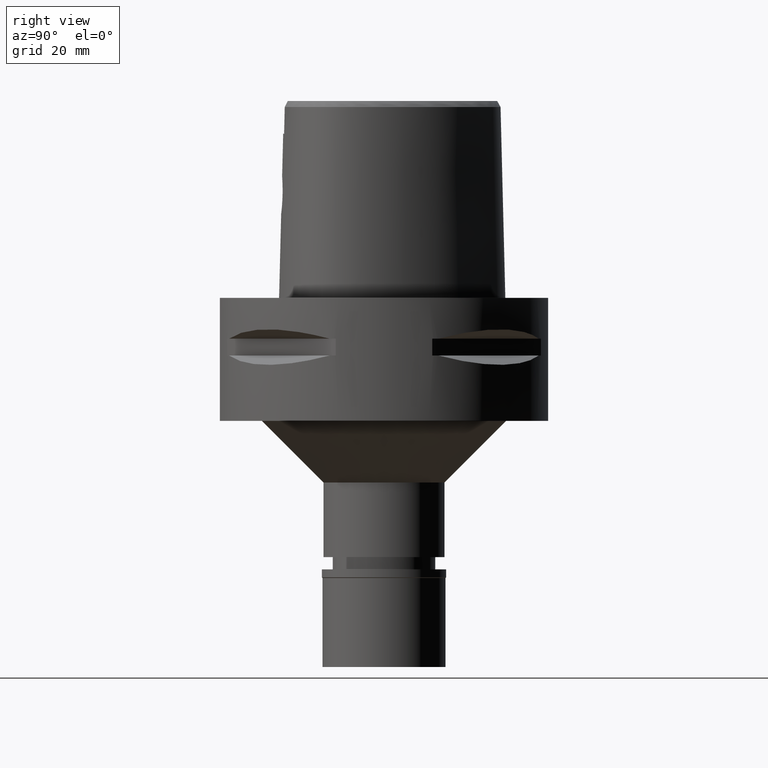
[diagram: clean part render]
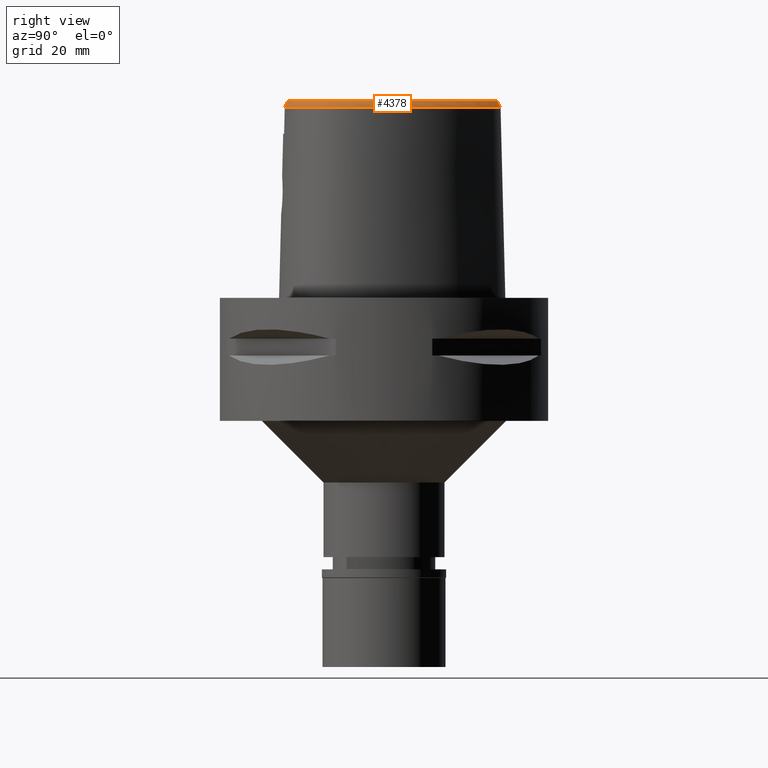
[diagram: same view with one face highlighted and labeled with its STEP entity id]
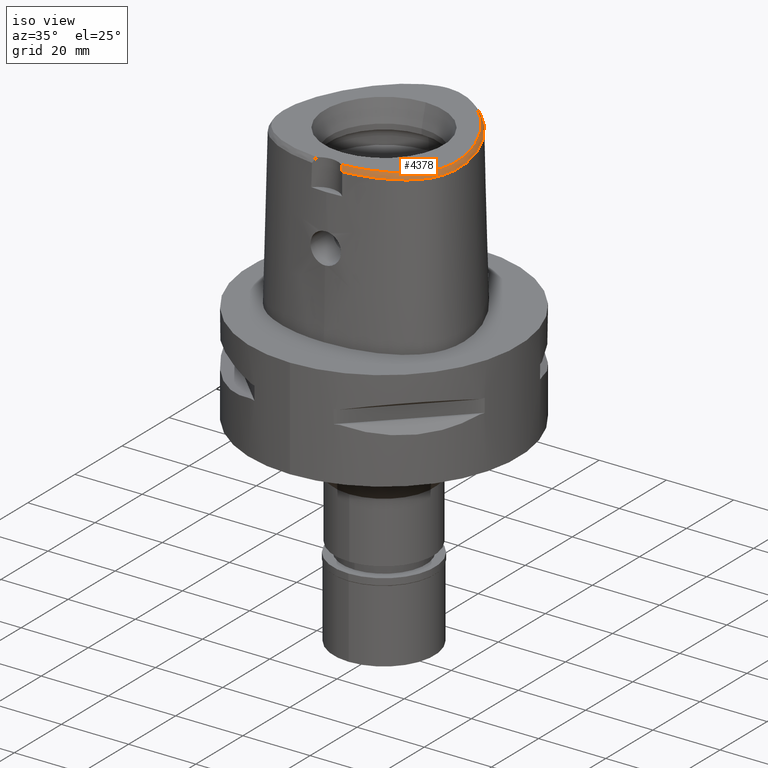
[diagram: same view with one face highlighted and labeled with its STEP entity id]
A machine part, right view. The second image highlights one B-rep face of the part: STEP entity #4378.
A second angle (iso view) of the same face is appended — the face is thin or edge-on in the first view.
In plain terms, the highlighted face is a freeform B-spline surface patch.
Its self-contained STEP definition (entity closure, byte-faithful):
#12 = CARTESIAN_POINT ( 'NONE',  ( 23.53784508590050351, -15.81022840325235101, 46.52069747213675299 ) ) ;
#29 = CARTESIAN_POINT ( 'NONE',  ( 25.64088338102000009, -7.344900613613999596, 48.18007419593999430 ) ) ;
#51 = CARTESIAN_POINT ( 'NONE',  ( 6.596705544693000078, 26.95391701082000324, 46.34061479720999444 ) ) ;
#60 = CARTESIAN_POINT ( 'NONE',  ( 3.157901390953000043, -23.72018130869000174, 47.56692138008000370 ) ) ;
#76 = CARTESIAN_POINT ( 'NONE',  ( 10.38460126487999879, 24.30003398994999841, 46.95376754828999566 ) ) ;
#85 = CARTESIAN_POINT ( 'NONE',  ( 17.34628619756000134, -20.42387336536000220, 46.95376767441999988 ) ) ;
#105 = CARTESIAN_POINT ( 'NONE',  ( 12.08138904680000003, 22.05616544323000028, 48.18007403053000814 ) ) ;
#114 = CARTESIAN_POINT ( 'NONE',  ( 5.742398983970999460, -24.17508867665999972, 46.34061577538999899 ) ) ;
#131 = CARTESIAN_POINT ( 'NONE',  ( 13.41110572882000085, 21.29893192947000102, 47.56692205235999893 ) ) ;
#136 = CARTESIAN_POINT ( 'NONE',  ( 14.78179831765999985, -20.85166113440000046, 48.18007428789999835 ) ) ;
#152 = CARTESIAN_POINT ( 'NONE',  ( 18.67675438144999944, 14.42738754188999906, 48.18007419999000263 ) ) ;
#161 = CARTESIAN_POINT ( 'NONE',  ( 3.134671635188999606, -23.37745442491999981, 48.18007412076999429 ) ) ;
#185 = CARTESIAN_POINT ( 'NONE',  ( 24.85656740750000182, -13.22604691823000067, 46.95376735023999970 ) ) ;
#194 = CARTESIAN_POINT ( 'NONE',  ( 13.24267791555689833, 21.12418368643334432, 47.99999999999820943 ) ) ;
#202 = CARTESIAN_POINT ( 'NONE',  ( 2.123626022070999930, 27.30653505098000267, 48.18007434286000290 ) ) ;
#210 = CARTESIAN_POINT ( 'NONE',  ( 24.54676992479000219, -13.07722594252999926, 47.56692084644999596 ) ) ;
#234 = CARTESIAN_POINT ( 'NONE',  ( 25.57334169138999869, -10.12482847395000007, 47.56692094291000217 ) ) ;
#253 = B_SPLINE_CURVE_WITH_KNOTS ( 'NONE', 3,
 ( #4706, #4799, #1245, #564, #2780, #544 ),
 .UNSPECIFIED., .F., .F.,
 ( 4, 1, 1, 4 ),
 ( 0.0000000000000000000, 0.3333333333333000081, 0.6666666666667000474, 1.000000000000000000 ),
 .UNSPECIFIED. ) ;
#257 = CARTESIAN_POINT ( 'NONE',  ( 2.239108897162999767, 27.98413104560999898, 46.95376734904999694 ) ) ;
#267 = CARTESIAN_POINT ( 'NONE',  ( 25.90813006229999971, -10.20246052006000070, 46.95376758327000033 ) ) ;
#297 = CARTESIAN_POINT ( 'NONE',  ( 23.27996631277000006, -15.72868801807999617, 46.95376799799999645 ) ) ;
#321 = CARTESIAN_POINT ( 'NONE',  ( 25.84605458648999843, -2.764527204806000338, 47.56692102096999264 ) ) ;
#345 = CARTESIAN_POINT ( 'NONE',  ( 25.35471145517999858, 1.556680153904999919, 46.95376768519000166 ) ) ;
#355 = CARTESIAN_POINT ( 'NONE',  ( 9.079666835764617971, -22.67647771863508410, 48.00000000001010392 ) ) ;
#372 = CARTESIAN_POINT ( 'NONE',  ( 25.50499885794000221, -2.806527274290000040, 48.18007427009000310 ) ) ;
#381 = CARTESIAN_POINT ( 'NONE',  ( 21.78596494081082824, -16.52262878100322396, 48.00000000000046896 ) ) ;
#392 = CARTESIAN_POINT ( 'NONE',  ( 25.97048418058000152, -4.025838470751000209, 47.56692107670999548 ) ) ;
#416 = CARTESIAN_POINT ( 'NONE',  ( 24.69023187387999840, 1.381293610638000047, 48.18007428499999634 ) ) ;
#433 = CARTESIAN_POINT ( 'NONE',  ( 26.66096789088959440, -6.450661550928245447, 46.52070141660812652 ) ) ;
#444 = CARTESIAN_POINT ( 'NONE',  ( 8.002032558455999478, 25.04896687407999778, 48.18007427799999931 ) ) ;
#454 = CARTESIAN_POINT ( 'NONE',  ( 12.32730625465999985, -22.44811009646999977, 46.95376790485000384 ) ) ;
#470 = CARTESIAN_POINT ( 'NONE',  ( 13.17264561890000074, 21.05152335463000313, 48.18007384122999781 ) ) ;
#478 = CARTESIAN_POINT ( 'NONE',  ( 17.18758658984999954, -20.11907231448000033, 47.56692098063999907 ) ) ;
#495 = CARTESIAN_POINT ( 'NONE',  ( 8.352303560578999253, 25.64030220655000036, 46.95376772590000058 ) ) ;
#507 = CARTESIAN_POINT ( 'NONE',  ( 9.129726850902001090, -22.91395773199000274, 47.56692097952999632 ) ) ;
#526 = CARTESIAN_POINT ( 'NONE',  ( 15.65603767912999977, 18.93799180007999894, 47.56692120915000288 ) ) ;
#538 = CARTESIAN_POINT ( 'NONE',  ( 15.04030460676000125, -21.48845147769999997, 46.95376766840000471 ) ) ;
#544 = CARTESIAN_POINT ( 'NONE',  ( 3.652533226355999751, -23.43985283522000174, 48.00000000000000000 ) ) ;
#552 = CARTESIAN_POINT ( 'NONE',  ( 6.451896040211999583, 26.64226029656999728, 46.95376794490999828 ) ) ;
#557 = VERTEX_POINT ( 'NONE', #2498 ) ;
#559 = CARTESIAN_POINT ( 'NONE',  ( 3.181131146716000391, -24.06290819244999923, 46.95376863939999623 ) ) ;
#564 = CARTESIAN_POINT ( 'NONE',  ( 3.935829031287000124, -23.66630135629999998, 47.55622098501999773 ) ) ;
#573 = CARTESIAN_POINT ( 'NONE',  ( 3.027503298020000067, 27.82780905803999971, 46.95376788467000040 ) ) ;
#582 = CARTESIAN_POINT ( 'NONE',  ( 24.15176169299000009, -14.50232267788000051, 46.95376750970999780 ) ) ;
#586 = CARTESIAN_POINT ( 'NONE',  ( 25.98365436782999893, -7.369523509214999990, 47.56692119930999496 ) ) ;
#588 = CARTESIAN_POINT ( 'NONE',  ( 11.07918744940963052, 23.03051546725279408, 48.00000000000522249 ) ) ;
#602 = CARTESIAN_POINT ( 'NONE',  ( 0.6879986110182000347, 27.46942530780999903, 48.18007431731000167 ) ) ;
#608 = CARTESIAN_POINT ( 'NONE',  ( 20.11858714328000275, -18.71397474173999953, 46.95376792319000003 ) ) ;
#629 = CARTESIAN_POINT ( 'NONE',  ( 0.7271237151273000077, 28.15569446550999899, 46.95376749745999945 ) ) ;
#641 = CARTESIAN_POINT ( 'NONE',  ( 26.02292646106000262, -11.12284912107000068, 46.34061431691999644 ) ) ;
#652 = CARTESIAN_POINT ( 'NONE',  ( 4.491298471527668035, 26.80158405532242583, 48.00000000000270717 ) ) ;
#658 = CARTESIAN_POINT ( 'NONE',  ( 0.7075611630727000056, 27.81255988666000079, 47.56692090738999212 ) ) ;
#666 = ORIENTED_EDGE ( 'NONE', *, *, #3261, .F. ) ;
#668 = CARTESIAN_POINT ( 'NONE',  ( 18.00929997150000261, -19.27209676624000068, 48.18007425707000380 ) ) ;
#697 = CARTESIAN_POINT ( 'NONE',  ( 23.74019838124999993, -15.11764739240000033, 46.95376757546999613 ) ) ;
#728 = CARTESIAN_POINT ( 'NONE',  ( 21.55191286514000026, 9.524453320122999500, 48.18007407103000617 ) ) ;
#738 = CARTESIAN_POINT ( 'NONE',  ( 26.56868348264639934, -7.988862950300020138, 46.52070085311223124 ) ) ;
#748 = CARTESIAN_POINT ( 'NONE',  ( 21.26008157413999911, 11.53277284253000090, 46.95376773003999915 ) ) ;
#757 = CARTESIAN_POINT ( 'NONE',  ( 21.18145661121184986, -17.09850743469401024, 47.99999999999823785 ) ) ;
#759 = CARTESIAN_POINT ( 'NONE',  ( 4.472216720976999405, -24.20009030094000124, 46.52069014668999358 ) ) ;
#774 = CARTESIAN_POINT ( 'NONE',  ( 23.08841594981999634, 6.157119697985999451, 48.18007416375999696 ) ) ;
#783 = CARTESIAN_POINT ( 'NONE',  ( 25.33687583871989091, -10.06999584063626330, 48.00000000000572697 ) ) ;
#803 = CARTESIAN_POINT ( 'NONE',  ( 26.37425288109000121, -5.202043877592999799, 46.95376760522999859 ) ) ;
#815 = CARTESIAN_POINT ( 'NONE',  ( 17.84219066873741255, -20.48406917475045219, 46.52069465465729792 ) ) ;
#823 = CARTESIAN_POINT ( 'NONE',  ( 26.37675703646999992, -6.332047535492000279, 46.95376804445000118 ) ) ;
#833 = CARTESIAN_POINT ( 'NONE',  ( 23.65541542675069664, -14.18997106324592750, 48.00000000000492406 ) ) ;
#838 = CARTESIAN_POINT ( 'NONE',  ( 16.39076485917053105, -21.20751266143367175, 46.52069409116138843 ) ) ;
#850 = CARTESIAN_POINT ( 'NONE',  ( 15.02831862416000064, 20.64675731216999921, 46.34061795577999732 ) ) ;
#875 = CARTESIAN_POINT ( 'NONE',  ( 9.351964765541000091, 25.01593934232000294, 46.95376769285999785 ) ) ;
#882 = CARTESIAN_POINT ( 'NONE',  ( 13.85087370417999963, -22.30824870747000332, 46.34061469686000123 ) ) ;
#901 = CARTESIAN_POINT ( 'NONE',  ( 16.77726884471000091, 17.59682606767000124, 47.56692084016000166 ) ) ;
#923 = CARTESIAN_POINT ( 'NONE',  ( 8.527439061639999096, 25.93596987279000032, 46.34061444985000122 ) ) ;
#931 = CARTESIAN_POINT ( 'NONE',  ( 10.89987162477000027, -23.20539823390000223, 46.34061435940999729 ) ) ;
#949 = CARTESIAN_POINT ( 'NONE',  ( 7.225350853127999962, 25.87625741304999849, 47.56692116210999899 ) ) ;
#959 = FACE_OUTER_BOUND ( 'NONE', #4170, .T. ) ;
#982 = CARTESIAN_POINT ( 'NONE',  ( 18.52942730452000220, -20.16221242756000009, 46.34061464271000830 ) ) ;
#987 = CARTESIAN_POINT ( 'NONE',  ( 8.053467330374783018, 25.13580020532472048, 48.00000000000488853 ) ) ;
#1005 = CARTESIAN_POINT ( 'NONE',  ( 21.80428447032999628, -17.78925365744999709, 46.34061419684000072 ) ) ;
#1015 = CARTESIAN_POINT ( 'NONE',  ( 16.58774972841738560, 17.44522137221390068, 48.00000000001061551 ) ) ;
#1033 = CARTESIAN_POINT ( 'NONE',  ( 25.03254111755999745, -10.83621333564999922, 48.18007429242000228 ) ) ;
#1062 = CARTESIAN_POINT ( 'NONE',  ( 25.48283736332999894, -12.66665979722999857, 46.34061485607000463 ) ) ;
#1077 = CARTESIAN_POINT ( 'NONE',  ( -0.01660226057379999773, 28.17685866367000003, 46.95376786832999727 ) ) ;
#1087 = CARTESIAN_POINT ( 'NONE',  ( 22.44490365254999986, -17.17903710741000012, 46.34061428771999402 ) ) ;
#1096 = CARTESIAN_POINT ( 'NONE',  ( 1.407937999592890677, 27.50970958195879845, 48.00000000000430589 ) ) ;
#1111 = CARTESIAN_POINT ( 'NONE',  ( 25.62782584270999919, -4.051757161291000386, 48.18007424692000029 ) ) ;
#1129 = CARTESIAN_POINT ( 'NONE',  ( 24.48700992949688526, 6.834036305491009600, 46.52070592457527454 ) ) ;
#1139 = CARTESIAN_POINT ( 'NONE',  ( 22.47125624539000199, 9.990693675080001057, 46.34061635704999560 ) ) ;
#1148 = CARTESIAN_POINT ( 'NONE',  ( 25.60516200877652793, -2.794192459353026514, 48.00000000000385114 ) ) ;
#1163 = CARTESIAN_POINT ( 'NONE',  ( 26.18711031504999909, -2.722527135321999747, 46.95376777185000350 ) ) ;
#1171 = CARTESIAN_POINT ( 'NONE',  ( 13.54089058450464833, -21.43147460488913936, 48.00000000000957812 ) ) ;
#1185 = CARTESIAN_POINT ( 'NONE',  ( 26.32848296919999953, -1.312674695501000022, 46.34061448439000230 ) ) ;
#1194 = CARTESIAN_POINT ( 'NONE',  ( 3.695072017992946822, -23.43648746218532608, 48.00000000000336087 ) ) ;
#1200 = LINE ( 'NONE', #3849, #1420 ) ;
#1209 = CARTESIAN_POINT ( 'NONE',  ( 25.74941301808999938, -9.265019863170000036, 47.56692092796999560 ) ) ;
#1219 = CARTESIAN_POINT ( 'NONE',  ( 14.81975810290876083, -20.94516920634793777, 48.00000000000768807 ) ) ;
#1221 = CARTESIAN_POINT ( 'NONE',  ( 26.30769162470763689, -1.593520748820276944, 46.52070310709584788 ) ) ;
#1231 = CARTESIAN_POINT ( 'NONE',  ( 19.69867297030999964, 12.83715782332999922, 48.18007428420000338 ) ) ;
#1245 = CARTESIAN_POINT ( 'NONE',  ( 4.209589151393000606, -23.91901046517000040, 47.06412677493000274 ) ) ;
#1257 = CARTESIAN_POINT ( 'NONE',  ( 14.28119124676999974, 19.93651518437000192, 48.18007389753999803 ) ) ;
#1284 = CARTESIAN_POINT ( 'NONE',  ( 5.551409126173999731, 27.03212672291999752, 46.95376763261999997 ) ) ;
#1292 = CARTESIAN_POINT ( 'NONE',  ( 10.72919907502000036, -22.53969495435999804, 47.56692097834999799 ) ) ;
#1307 = CARTESIAN_POINT ( 'NONE',  ( 9.162728381494000374, 24.72909887479000091, 47.56692098827999615 ) ) ;
#1327 = CARTESIAN_POINT ( 'NONE',  ( 8.177168059516999321, 25.34463454031000040, 47.56692100194999995 ) ) ;
#1377 = B_SPLINE_CURVE_WITH_KNOTS ( 'NONE', 3,
 ( #2387, #2758, #4686, #2290, #3169, #4223, #2360, #2736, #1129, #1221, #4204, #433, #738, #3516, #1995, #4295, #3819, #12, #3492, #3147, #5038, #815, #838, #3901, #3876, #759 ),
 .UNSPECIFIED., .F., .F.,
 ( 4, 2, 2, 2, 2, 2, 2, 2, 2, 2, 2, 2, 4 ),
 ( 0.0000000000000000000, 0.06249999999999991673, 0.1249999999999998612, 0.2499999999999997780, 0.4999999999999995559, 0.5624999999999994449, 0.6249999999999993339, 0.6874999999999993339, 0.7187499999999993339, 0.7499999999999994449, 0.8124999999999995559, 0.8749999999999996669, 1.000000000000000000 ),
 .UNSPECIFIED. ) ;
#1382 = CARTESIAN_POINT ( 'NONE',  ( 3.841154614901000297, 27.61983465477999999, 46.95376809334999990 ) ) ;
#1389 = CARTESIAN_POINT ( 'NONE',  ( 23.02468728140000209, -16.56380867720999817, 46.34061445735000007 ) ) ;
#1416 = CARTESIAN_POINT ( 'NONE',  ( 25.44451698377000071, -11.80349811939999860, 46.95376782457999809 ) ) ;
#1420 = VECTOR ( 'NONE', #1902, 1000.000000000000114 ) ;
#1426 = CARTESIAN_POINT ( 'NONE',  ( 23.81116373424025312, 4.548397580874730117, 48.00000000000433431 ) ) ;
#1434 = CARTESIAN_POINT ( 'NONE',  ( 1.396541970786000064, 27.40941912008999637, 48.18007437098000167 ) ) ;
#1443 = CARTESIAN_POINT ( 'NONE',  ( 23.46009488263000264, -14.91849121227000019, 47.56692093967999568 ) ) ;
#1462 = CARTESIAN_POINT ( 'NONE',  ( -0.7594728682108999873, 27.46010919787000049, 48.18007437569000473 ) ) ;
#1470 = CARTESIAN_POINT ( 'NONE',  ( 21.09811681096000058, -18.39377067631999907, 46.34061419121999137 ) ) ;
#1478 = CARTESIAN_POINT ( 'NONE',  ( 5.331982176209418611, 26.48833275828846823, 48.00000000000174794 ) ) ;
#1493 = CARTESIAN_POINT ( 'NONE',  ( 18.90260609598999864, -18.71898979700000254, 48.18007419028999294 ) ) ;
#1520 = CARTESIAN_POINT ( 'NONE',  ( 23.40667920559999970, 6.286639116661999260, 47.56692127669000314 ) ) ;
#1531 = CARTESIAN_POINT ( 'NONE',  ( 5.628119991153127444, -23.25222728397346117, 48.00000000000208900 ) ) ;
#1543 = CARTESIAN_POINT ( 'NONE',  ( 26.42626315995000041, -9.384599034423999342, 46.34061416639999464 ) ) ;
#1552 = CARTESIAN_POINT ( 'NONE',  ( 15.99678577414262115, -20.43406366493088555, 48.00000000000676437 ) ) ;
#1564 = CARTESIAN_POINT ( 'NONE',  ( 26.52816604360999975, -2.680527065837999601, 46.34061452273000015 ) ) ;
#1585 = CARTESIAN_POINT ( 'NONE',  ( 25.31222752652999830, -1.485708825829000101, 48.18007427425000344 ) ) ;
#1595 = CARTESIAN_POINT ( 'NONE',  ( 25.74155027848015820, -7.352132003089803192, 48.00000000000678568 ) ) ;
#1610 = CARTESIAN_POINT ( 'NONE',  ( 25.98973115497999942, -1.370352738944000004, 46.95376774768000416 ) ) ;
#1632 = CARTESIAN_POINT ( 'NONE',  ( 5.294215085129000187, 26.39473661526999848, 48.18007429404999442 ) ) ;
#1641 = CARTESIAN_POINT ( 'NONE',  ( 14.91105146220999877, -21.17005630605000022, 47.56692097814999443 ) ) ;
#1655 = CARTESIAN_POINT ( 'NONE',  ( 12.30859843710999968, 22.31395051496999926, 47.56692159709999856 ) ) ;
#1663 = CARTESIAN_POINT ( 'NONE',  ( 10.81453534989999987, -22.87254659413000013, 46.95376766887999764 ) ) ;
#1678 = CARTESIAN_POINT ( 'NONE',  ( 19.24719422429999938, 14.81060417553000086, 46.95376817916999812 ) ) ;
#1683 = CARTESIAN_POINT ( 'NONE',  ( 3.652533226355999751, -23.43985283522000174, 48.00000000000000000 ) ) ;
#1686 = CARTESIAN_POINT ( 'NONE',  ( 12.42721170006000087, -22.77688688679999984, 46.34061473367999895 ) ) ;
#1700 = CARTESIAN_POINT ( 'NONE',  ( 15.39705639671000093, 18.71216436794999538, 48.18007419184999662 ) ) ;
#1706 = CARTESIAN_POINT ( 'NONE',  ( 4.446663426647999628, -24.30860725487999829, 46.34061613168999827 ) ) ;
#1731 = CARTESIAN_POINT ( 'NONE',  ( 7.436088919471999681, -23.23422973569000050, 47.56692096175999751 ) ) ;
#1747 = VERTEX_POINT ( 'NONE', #1683 ) ;
#1748 = CARTESIAN_POINT ( 'NONE',  ( 2.296850334708000041, 28.32292904292999935, 46.34061385214999973 ) ) ;
#1757 = CARTESIAN_POINT ( 'NONE',  ( 25.16636489020000056, -13.37486789393000031, 46.34061385403000344 ) ) ;
#1765 = CARTESIAN_POINT ( 'NONE',  ( 14.35433142683535301, 20.00604447574735545, 48.00000000000309086 ) ) ;
#1783 = CARTESIAN_POINT ( 'NONE',  ( 18.18267574917000218, -19.56880198668000048, 47.56692105227999434 ) ) ;
#1792 = CARTESIAN_POINT ( 'NONE',  ( 20.74842146925110598, 11.24651447314026242, 48.00000000000827072 ) ) ;
#1811 = CARTESIAN_POINT ( 'NONE',  ( 19.71405436993000038, -18.15831526665999718, 48.18007424404000005 ) ) ;
#1828 = CARTESIAN_POINT ( 'NONE',  ( -0.01712891577436999671, 28.52056752600999801, 46.34061467576000837 ) ) ;
#1838 = CARTESIAN_POINT ( 'NONE',  ( 26.24291843321000073, -10.28009256618000045, 46.34061422362999849 ) ) ;
#1848 = CARTESIAN_POINT ( 'NONE',  ( 3.680297990136021102, 27.05591354499795287, 48.00000000000008527 ) ) ;
#1862 = CARTESIAN_POINT ( 'NONE',  ( 24.02030187987000076, -15.31680357253999958, 46.34061421124999924 ) ) ;
#1870 = CARTESIAN_POINT ( 'NONE',  ( 22.82172265264157218, -15.36274108902376589, 48.00000000000866862 ) ) ;
#1885 = CARTESIAN_POINT ( 'NONE',  ( 25.71427548084000136, 0.05723562514976000132, 46.95376801624000507 ) ) ;
#1895 = CARTESIAN_POINT ( 'NONE',  ( 25.72845965680040692, -4.044145215521686154, 48.00000000000830624 ) ) ;
#1902 = DIRECTION ( 'NONE',  ( -8.026808488646270522E-12, -0.4887572309465159082, 0.8724198353989288668 ) ) ;
#1908 = CARTESIAN_POINT ( 'NONE',  ( 26.56963733430000119, -8.432427705165000731, 46.34061448834999908 ) ) ;
#1922 = CARTESIAN_POINT ( 'NONE',  ( 24.62320007857000093, -12.31148373401171447, 48.00000000000709832 ) ) ;
#1938 = CARTESIAN_POINT ( 'NONE',  ( 24.04320571715999932, 6.545677954015000743, 46.34061550254000394 ) ) ;
#1947 = CARTESIAN_POINT ( 'NONE',  ( 19.77345709183517286, -18.23990985539869314, 48.00000000000108713 ) ) ;
#1960 = CARTESIAN_POINT ( 'NONE',  ( 23.72494246137999951, 6.416158535338000846, 46.95376838960999777 ) ) ;
#1980 = CARTESIAN_POINT ( 'NONE',  ( 22.36479587462000040, 7.835693360635999305, 48.18007401973000725 ) ) ;
#1995 = CARTESIAN_POINT ( 'NONE',  ( 25.61240997289461419, -12.23358473966469795, 46.52069916262450988 ) ) ;
#2009 = CARTESIAN_POINT ( 'NONE',  ( 6.162277031248999393, 26.01894686809000135, 48.18007424030000152 ) ) ;
#2017 = CARTESIAN_POINT ( 'NONE',  ( 4.349335350023999958, -23.28258488700999962, 48.18007409548999931 ) ) ;
#2031 = CARTESIAN_POINT ( 'NONE',  ( 19.53241414572000068, 15.00221249235000087, 46.34061516876000297 ) ) ;
#2039 = CARTESIAN_POINT ( 'NONE',  ( 2.920837662395999956, -24.07908470615999974, 46.95376857042000296 ) ) ;
#2058 = CARTESIAN_POINT ( 'NONE',  ( 4.458482872373999761, 26.70613745678999962, 48.18007424291999996 ) ) ;
#2067 = CARTESIAN_POINT ( 'NONE',  ( 9.200601823869998697, -23.25018195168999924, 46.95376767172000143 ) ) ;
#2089 = CARTESIAN_POINT ( 'NONE',  ( 9.541201149588001584, 25.30277980986000230, 46.34061439744999689 ) ) ;
#2113 = CARTESIAN_POINT ( 'NONE',  ( 20.28429330140999909, 13.19674057005000023, 46.95376768986999849 ) ) ;
#2119 = CARTESIAN_POINT ( 'NONE',  ( 7.379589232834000256, -22.89529653518999908, 48.18007429470999625 ) ) ;
#2137 = CARTESIAN_POINT ( 'NONE',  ( 0.7466862671817999786, 28.49882904437000164, 46.34061408752999967 ) ) ;
#2146 = CARTESIAN_POINT ( 'NONE',  ( 23.86087376425000173, -14.31926637141999947, 47.56692091245999165 ) ) ;
#2177 = CARTESIAN_POINT ( 'NONE',  ( 24.82138521867999970, -14.04342922997999921, 46.34061456411000535 ) ) ;
#2186 = CARTESIAN_POINT ( 'NONE',  ( 12.14811716929686192, 22.13187320258565194, 47.99999999999997868 ) ) ;
#2194 = CARTESIAN_POINT ( 'NONE',  ( -0.5271154137784999083, 28.16147527821000196, 46.95376759876000250 ) ) ;
#2203 = CARTESIAN_POINT ( 'NONE',  ( 25.36266956539000006, -10.93175859746000000, 47.56692096724999175 ) ) ;
#2218 = CARTESIAN_POINT ( 'NONE',  ( 3.103755385634000330, 28.16292140555000145, 46.34061470166999186 ) ) ;
#2228 = CARTESIAN_POINT ( 'NONE',  ( 21.71445780207000098, -16.45139623625999903, 48.18007429559000343 ) ) ;
#2237 = CARTESIAN_POINT ( 'NONE',  ( 0.6937438505404305289, 27.57019898701108929, 47.99999999999892708 ) ) ;
#2245 = CARTESIAN_POINT ( 'NONE',  ( 1.474148972460000095, 28.09239756583000158, 46.95376718568999763 ) ) ;
#2255 = CARTESIAN_POINT ( 'NONE',  ( 20.44899304921999672, -17.59278147572999984, 48.18007430605999986 ) ) ;
#2281 = CARTESIAN_POINT ( 'NONE',  ( 21.85836065856000232, 9.679866771774999989, 47.56692149970999850 ) ) ;
#2288 = CARTESIAN_POINT ( 'NONE',  ( 25.41171405094327085, -1.468769615953026131, 48.00000000000498090 ) ) ;
#2290 = CARTESIAN_POINT ( 'NONE',  ( 5.530043876419171056, 27.35846726636745885, 46.52071494050979794 ) ) ;
#2300 = CARTESIAN_POINT ( 'NONE',  ( 21.55994430758000036, 11.70053698185000002, 46.34061445641999910 ) ) ;
#2309 = CARTESIAN_POINT ( 'NONE',  ( 24.00708073425612810, -13.59389763842706245, 48.00000000000430589 ) ) ;
#2322 = CARTESIAN_POINT ( 'NONE',  ( 24.57754585928999802, 3.020409077760000116, 47.56692097454999413 ) ) ;
#2348 = CARTESIAN_POINT ( 'NONE',  ( 24.24943546150000273, 2.918358499165000008, 48.18007428940000381 ) ) ;
#2358 = CARTESIAN_POINT ( 'NONE',  ( 25.79052179445040593, -6.319355031379559229, 48.00000000001038103 ) ) ;
#2360 = CARTESIAN_POINT ( 'NONE',  ( 13.63304938780142628, 22.11238814013817588, 46.52071155953439785 ) ) ;
#2369 = CARTESIAN_POINT ( 'NONE',  ( 26.72032516000000157, -6.339486084913999342, 46.34061495508000661 ) ) ;
#2387 = CARTESIAN_POINT ( 'NONE',  ( -1.192039543198999986E-11, 28.41206021534999593, 46.52071719450999154 ) ) ;
#2398 = CARTESIAN_POINT ( 'NONE',  ( 11.23123156556000168, 23.21969979504000037, 47.56692092878999745 ) ) ;
#2406 = CARTESIAN_POINT ( 'NONE',  ( 9.271476796838999945, -23.58640617138999929, 46.34061436392000388 ) ) ;
#2426 = CARTESIAN_POINT ( 'NONE',  ( 4.793694414255000424, 27.68112503240999800, 46.34061477308999599 ) ) ;
#2433 = CARTESIAN_POINT ( 'NONE',  ( 16.38644946862000040, -21.27847758828000124, 46.34061480123000365 ) ) ;
#2450 = CARTESIAN_POINT ( 'NONE',  ( 11.44649563594999897, 23.48754697969000205, 46.95376754917000284 ) ) ;
#2459 = CARTESIAN_POINT ( 'NONE',  ( 5.700172185729999619, -23.83408565526000089, 46.95376856164999424 ) ) ;
#2464 = B_SPLINE_SURFACE_WITH_KNOTS ( 'NONE', 3, 3, ( 
 ( #3232, #3281, #2039, #3658 ),
 ( #161, #60, #559, #4749 ),
 ( #2872, #3637, #2481, #4428 ),
 ( #2017, #3612, #2801, #1706 ),
 ( #3991, #4043, #2459, #114 ),
 ( #2119, #1731, #4821, #4453 ),
 ( #2846, #507, #2067, #2406 ),
 ( #4398, #1292, #1663, #931 ),
 ( #3945, #3585, #454, #1686 ),
 ( #4771, #4020, #3563, #882 ),
 ( #136, #1641, #538, #3256 ),
 ( #3189, #4727, #2825, #2433 ),
 ( #3971, #478, #85, #4372 ),
 ( #668, #1783, #2579, #982 ),
 ( #1493, #3005, #3388, #2948 ),
 ( #1811, #2523, #608, #3329 ),
 ( #2255, #4063, #4847, #1470 ),
 ( #4499, #2923, #4552, #1005 ),
 ( #2228, #4925, #3029, #1087 ),
 ( #4870, #2628, #4895, #1389 ),
 ( #3784, #2602, #297, #4164 ),
 ( #3358, #1443, #697, #1862 ),
 ( #3411, #2146, #582, #4090 ),
 ( #4139, #4951, #3683, #2177 ),
 ( #2978, #210, #185, #1757 ),
 ( #3304, #4528, #4472, #1062 ),
 ( #2548, #3757, #1416, #3708 ),
 ( #1033, #2203, #4117, #641 ),
 ( #3731, #234, #267, #1838 ),
 ( #4627, #1209, #2655, #1543 ),
 ( #3131, #4650, #4283, #1908 ),
 ( #29, #586, #3480, #3458 ),
 ( #5024, #3433, #823, #2369 ),
 ( #3911, #3501, #803, #2747 ),
 ( #1111, #392, #3527, #3080 ),
 ( #372, #321, #1163, #1564 ),
 ( #1585, #3832, #1610, #1185 ),
 ( #4606, #5001, #1885, #3809 ),
 ( #416, #3864, #345, #4259 ),
 ( #2348, #2322, #2677, #3889 ),
 ( #4214, #4193, #4976, #4673 ),
 ( #774, #1520, #1960, #1938 ),
 ( #1980, #2698, #3103, #4578 ),
 ( #728, #2281, #3055, #1139 ),
 ( #4234, #2724, #748, #2300 ),
 ( #1231, #4366, #2113, #2766 ),
 ( #152, #3963, #1678, #2031 ),
 ( #3225, #4338, #4010, #2473 ),
 ( #3630, #901, #3603, #3180 ),
 ( #1700, #526, #2864, #3156 ),
 ( #1257, #3577, #4419, #850 ),
 ( #470, #131, #3249, #3650 ),
 ( #105, #1655, #3202, #4786 ),
 ( #4305, #2398, #2450, #4694 ),
 ( #3555, #3937, #76, #4764 ),
 ( #3984, #1307, #875, #2089 ),
 ( #444, #1327, #495, #923 ),
 ( #2841, #949, #2497, #4741 ),
 ( #2009, #4037, #552, #51 ),
 ( #1632, #4388, #1284, #2820 ),
 ( #2058, #4717, #2792, #2426 ),
 ( #2566, #3272, #1382, #2541 ),
 ( #2997, #4812, #573, #2218 ),
 ( #202, #3676, #257, #1748 ),
 ( #1434, #4131, #2245, #3748 ),
 ( #602, #658, #629, #2137 ),
 ( #4543, #3348, #1077, #1828 ),
 ( #3379, #4107, #2194, #4917 ),
 ( #1462, #2616, #2892, #3774 ) ),
 .UNSPECIFIED., .F., .F., .F.,
 ( 4, 1, 1, 1, 1, 1, 1, 1, 1, 1, 1, 1, 1, 1, 1, 1, 1, 1, 1, 1, 1, 1, 1, 1, 1, 1, 1, 1, 1, 1, 1, 1, 1, 1, 1, 1, 1, 1, 1, 1, 1, 1, 1, 1, 1, 1, 1, 1, 1, 1, 1, 1, 1, 1, 1, 1, 1, 1, 1, 1, 1, 1, 1, 1, 1, 1, 4 ),
 ( 4, 4 ),
 ( -0.006501344654137999890, 0.0000000000000000000, 0.001084806278982999904, 0.01694060300470999827, 0.03279639973041999917, 0.04865219645615000144, 0.06450799318185999887, 0.08036378990756999630, 0.09621958663328000760, 0.1120753833589999970, 0.1279311800848000058, 0.1437869768104999835, 0.1596427735361999889, 0.1754985702619000221, 0.1913543669875999997, 0.2072101637133000052, 0.2230659604390000106, 0.2389217571648000193, 0.2547775538904999970, 0.2706333506161999747, 0.2864891473419000079, 0.3023449440675999855, 0.3182007407932999632, 0.3340565375190999720, 0.3499123342448000051, 0.3657681309706000139, 0.3816239276962999916, 0.3974797244219999692, 0.4133355211477000024, 0.4291913178734000356, 0.4450471145992000443, 0.4609029113249000220, 0.4767587080505999997, 0.4926145047763000329, 0.5084703015020000105, 0.5243260982276999327, 0.5401818949534999970, 0.5560376916792000301, 0.5718934884048999523, 0.5877492851305999855, 0.6036050818563000187, 0.6194608785820000518, 0.6353166753076999740, 0.6511724720334999272, 0.6670282687592000714, 0.6828840654848999936, 0.6987398622106000268, 0.7145956589363000599, 0.7304514556619999821, 0.7463072523879000775, 0.7621630491135999996, 0.7780188458392999218, 0.7938746425650000660, 0.8097304392906999881, 0.8255862360164000213, 0.8414420327421000545, 0.8572978294679000077, 0.8731536261936000409, 0.8890094229192999631, 0.9048652196450001073, 0.9207210163707000294, 0.9365768130963999516, 0.9524326098222000159, 0.9682884065478999380, 0.9841442032736000822, 1.000000000000000000, 1.017074182962999895 ),
 ( -0.09781582365956000003, 1.097815823653999878 ),
 .UNSPECIFIED. ) ;
#2473 = CARTESIAN_POINT ( 'NONE',  ( 18.43833217948999703, 16.55960522587999861, 46.34061484712000123 ) ) ;
#2481 = CARTESIAN_POINT ( 'NONE',  ( 3.483802026366000337, -24.04153292594000035, 46.95376870081000220 ) ) ;
#2497 = CARTESIAN_POINT ( 'NONE',  ( 7.385675246836999719, 26.18021741020000093, 46.95376811282000062 ) ) ;
#2498 = CARTESIAN_POINT ( 'NONE',  ( -1.192039543198999986E-11, 28.41206021534999593, 46.52071719450999154 ) ) ;
#2523 = CARTESIAN_POINT ( 'NONE',  ( 19.91632075659999757, -18.43614500420000368, 47.56692108360999782 ) ) ;
#2529 = CARTESIAN_POINT ( 'NONE',  ( 9.029067995420529513, 24.52649931749863299, 48.00000000000886757 ) ) ;
#2541 = CARTESIAN_POINT ( 'NONE',  ( 3.935426000796999446, 27.95032539231999635, 46.34061503266000415 ) ) ;
#2548 = CARTESIAN_POINT ( 'NONE',  ( 24.79568598075000097, -11.57659263798000104, 48.18007426100999879 ) ) ;
#2557 = CARTESIAN_POINT ( 'NONE',  ( 17.68852893097905010, 16.00958332232001524, 48.00000000000527223 ) ) ;
#2566 = CARTESIAN_POINT ( 'NONE',  ( 3.652611843109000223, 26.95885317972000195, 48.18007421475000029 ) ) ;
#2579 = CARTESIAN_POINT ( 'NONE',  ( 18.35605152684999908, -19.86550720712000029, 46.95376784749999644 ) ) ;
#2588 = CARTESIAN_POINT ( 'NONE',  ( 24.34579675531114518, 2.948329282943342733, 48.00000000001016076 ) ) ;
#2602 = CARTESIAN_POINT ( 'NONE',  ( 23.01140873870999926, -15.51422172416000045, 47.56692111459000216 ) ) ;
#2616 = CARTESIAN_POINT ( 'NONE',  ( -0.7802948811229000192, 27.80296059649000284, 47.56692076701000360 ) ) ;
#2628 = CARTESIAN_POINT ( 'NONE',  ( 22.51204828923999912, -16.10591698753000145, 47.56692100390999656 ) ) ;
#2655 = CARTESIAN_POINT ( 'NONE',  ( 26.08783808901999990, -9.324809448796999689, 46.95376754718000001 ) ) ;
#2677 = CARTESIAN_POINT ( 'NONE',  ( 24.90565625708000042, 3.122459656355000224, 46.95376765971000310 ) ) ;
#2685 = CARTESIAN_POINT ( 'NONE',  ( 22.33100613406490709, -15.94420923684996794, 48.00000000000840572 ) ) ;
#2698 = CARTESIAN_POINT ( 'NONE',  ( 22.67738528373000051, 7.978357412597999243, 47.56692162309000338 ) ) ;
#2709 = CARTESIAN_POINT ( 'NONE',  ( 7.396182376303492845, -22.99483633013620576, 48.00000000000390799 ) ) ;
#2724 = CARTESIAN_POINT ( 'NONE',  ( 20.96021884069000052, 11.36500870322000090, 47.56692100366999654 ) ) ;
#2736 = CARTESIAN_POINT ( 'NONE',  ( 20.76159157987598292, 13.99289103071688523, 46.52070817855894802 ) ) ;
#2747 = CARTESIAN_POINT ( 'NONE',  ( 26.71776646838999625, -5.192613329503999786, 46.34061425846000049 ) ) ;
#2757 = CARTESIAN_POINT ( 'NONE',  ( 10.66892483386963875, -22.30459704282121081, 48.00000000000991918 ) ) ;
#2758 = CARTESIAN_POINT ( 'NONE',  ( 1.375467128704447539, 28.41206022877290849, 46.52071663099748378 ) ) ;
#2766 = CARTESIAN_POINT ( 'NONE',  ( 20.57710346695999704, 13.37653194341000074, 46.34061439271000182 ) ) ;
#2780 = CARTESIAN_POINT ( 'NONE',  ( 3.747630506289000074, -23.51282242264000288, 47.85676955492999696 ) ) ;
#2792 = CARTESIAN_POINT ( 'NONE',  ( 4.681957233628000203, 27.35612917387000209, 46.95376792969999968 ) ) ;
#2801 = CARTESIAN_POINT ( 'NONE',  ( 4.414220734439998850, -23.96659979892000081, 46.95376878629000572 ) ) ;
#2820 = CARTESIAN_POINT ( 'NONE',  ( 5.680006146696999991, 27.35082177674999926, 46.34061430189999697 ) ) ;
#2825 = CARTESIAN_POINT ( 'NONE',  ( 16.24246631124000118, -20.96646139445999779, 46.95376794743999938 ) ) ;
#2841 = CARTESIAN_POINT ( 'NONE',  ( 7.065026459420000293, 25.57229741589999961, 48.18007421139999735 ) ) ;
#2846 = CARTESIAN_POINT ( 'NONE',  ( 9.058851877932999841, -22.57773351230000003, 48.18007428732999387 ) ) ;
#2864 = CARTESIAN_POINT ( 'NONE',  ( 15.91501896154999862, 19.16381923220000161, 46.95376822646000647 ) ) ;
#2872 = CARTESIAN_POINT ( 'NONE',  ( 3.432844095222999936, -23.35639659886999908, 48.18007411019999608 ) ) ;
#2892 = CARTESIAN_POINT ( 'NONE',  ( -0.8011168940349000511, 28.14581199511000165, 46.95376715833999981 ) ) ;
#2907 = CARTESIAN_POINT ( 'NONE',  ( 0.2325907962421038533, 27.58331912251360762, 48.00000000000059686 ) ) ;
#2923 = CARTESIAN_POINT ( 'NONE',  ( 21.34400693905000068, -17.27878361104000149, 47.56692093590999093 ) ) ;
#2944 = CARTESIAN_POINT ( 'NONE',  ( 4.472216720976999405, -24.20009030094000124, 46.52069014668999358 ) ) ;
#2948 = CARTESIAN_POINT ( 'NONE',  ( 19.46634441381999991, -19.58216473243000166, 46.34061525806999526 ) ) ;
#2957 = CARTESIAN_POINT ( 'NONE',  ( 22.45659887780546882, 7.877591736060838734, 48.00000000000466116 ) ) ;
#2978 = CARTESIAN_POINT ( 'NONE',  ( 24.23697244209000345, -12.92840496684000229, 48.18007434265999933 ) ) ;
#2988 = CARTESIAN_POINT ( 'NONE',  ( 6.204805495149980921, 26.11047595223783446, 48.00000000000209610 ) ) ;
#2997 = CARTESIAN_POINT ( 'NONE',  ( 2.874999122793000073, 27.15758436301999623, 48.18007425067000327 ) ) ;
#3005 = CARTESIAN_POINT ( 'NONE',  ( 19.09051886859999669, -19.00671477547999544, 47.56692121288000408 ) ) ;
#3012 = CARTESIAN_POINT ( 'NONE',  ( 7.112111422625241097, 25.66156608519390758, 48.00000000000105160 ) ) ;
#3020 = EDGE_CURVE ( 'NONE', #557, #3764, #1377, .T. ) ;
#3029 = CARTESIAN_POINT ( 'NONE',  ( 22.20142170239000379, -16.93649015036000094, 46.95376762368000101 ) ) ;
#3038 = CARTESIAN_POINT ( 'NONE',  ( 24.89096213678912051, -11.60991207239863598, 48.00000000000139266 ) ) ;
#3055 = CARTESIAN_POINT ( 'NONE',  ( 22.16480845198000083, 9.835280223427998791, 46.95376892838000060 ) ) ;
#3064 = CARTESIAN_POINT ( 'NONE',  ( 18.95779336836631757, -18.80349047535330698, 48.00000000000142819 ) ) ;
#3080 = CARTESIAN_POINT ( 'NONE',  ( 26.65580085632000262, -3.974001089670000209, 46.34061473627999561 ) ) ;
#3089 = CARTESIAN_POINT ( 'NONE',  ( 24.32795549673736346, -12.97211154200619099, 48.00000000000706990 ) ) ;
#3103 = CARTESIAN_POINT ( 'NONE',  ( 22.98997469284000061, 8.121021464560000069, 46.95376922644000217 ) ) ;
#3131 = CARTESIAN_POINT ( 'NONE',  ( 25.54641832605999952, -8.306157213680000595, 48.18007427381999719 ) ) ;
#3147 = CARTESIAN_POINT ( 'NONE',  ( 21.61408639850553115, -17.89738970854942224, 46.52069634514498375 ) ) ;
#3156 = CARTESIAN_POINT ( 'NONE',  ( 16.17400024397000280, 19.38964666431999717, 46.34061524376999586 ) ) ;
#3169 = CARTESIAN_POINT ( 'NONE',  ( 6.913370730854342838, 26.74336904842935070, 46.52071437701389556 ) ) ;
#3180 = CARTESIAN_POINT ( 'NONE',  ( 17.31391120121000071, 18.02610994473999995, 46.34061382994000411 ) ) ;
#3189 = CARTESIAN_POINT ( 'NONE',  ( 15.95449999647000006, -20.34242900681000066, 48.18007423987000237 ) ) ;
#3202 = CARTESIAN_POINT ( 'NONE',  ( 12.53580782741000021, 22.57173558670000091, 46.95376916365999875 ) ) ;
#3225 = CARTESIAN_POINT ( 'NONE',  ( 17.60716129547000008, 15.94989568845000072, 48.18007423489000018 ) ) ;
#3232 = CARTESIAN_POINT ( 'NONE',  ( 2.878226460287000243, -23.39339181593999939, 48.18007413264999883 ) ) ;
#3249 = CARTESIAN_POINT ( 'NONE',  ( 13.64956583873999918, 21.54634050430999892, 46.95377026349000005 ) ) ;
#3256 = CARTESIAN_POINT ( 'NONE',  ( 15.16955775129999928, -21.80684664933999883, 46.34061435865000078 ) ) ;
#3261 = EDGE_CURVE ( 'NONE', #3764, #1747, #253, .T. ) ;
#3272 = CARTESIAN_POINT ( 'NONE',  ( 3.746883229004999816, 27.28934391724999742, 47.56692115405000010 ) ) ;
#3281 = CARTESIAN_POINT ( 'NONE',  ( 2.899532061341999700, -23.73623826104999779, 47.56692135153000578 ) ) ;
#3304 = CARTESIAN_POINT ( 'NONE',  ( 24.52991340183999824, -12.27294050748999865, 48.18007423391999566 ) ) ;
#3329 = CARTESIAN_POINT ( 'NONE',  ( 20.32085352994999994, -18.99180447927999893, 46.34061476275999780 ) ) ;
#3338 = CARTESIAN_POINT ( 'NONE',  ( 21.64191216433447096, 9.570096010442238565, 48.00000000000365219 ) ) ;
#3348 = CARTESIAN_POINT ( 'NONE',  ( -0.01607560537321999980, 27.83314980132999850, 47.56692106090999772 ) ) ;
#3358 = CARTESIAN_POINT ( 'NONE',  ( 23.17999138401000181, -14.71933503213000094, 48.18007430389000234 ) ) ;
#3379 = CARTESIAN_POINT ( 'NONE',  ( -0.4991571918273000064, 27.47489239963000074, 48.18007429987999757 ) ) ;
#3388 = CARTESIAN_POINT ( 'NONE',  ( 19.27843164121000186, -19.29443975394999811, 46.95376823548000544 ) ) ;
#3411 = CARTESIAN_POINT ( 'NONE',  ( 23.56998583549999893, -14.13621006496999932, 48.18007431520999972 ) ) ;
#3433 = CARTESIAN_POINT ( 'NONE',  ( 26.03318891294999915, -6.324608986070000327, 47.56692113381000553 ) ) ;
#3443 = CARTESIAN_POINT ( 'NONE',  ( 25.64658655007974986, -8.318518488027276447, 48.00000000000402878 ) ) ;
#3458 = CARTESIAN_POINT ( 'NONE',  ( 26.66919634145999751, -7.418769300415999801, 46.34061520605999362 ) ) ;
#3480 = CARTESIAN_POINT ( 'NONE',  ( 26.32642535464000133, -7.394146404815000295, 46.95376820269000007 ) ) ;
#3489 = CARTESIAN_POINT ( 'NONE',  ( 3.652533226355999751, -23.43985283522000174, 48.00000000000000000 ) ) ;
#3492 = CARTESIAN_POINT ( 'NONE',  ( 23.08984995680276242, -16.35075897049665627, 46.52069719038883022 ) ) ;
#3501 = CARTESIAN_POINT ( 'NONE',  ( 26.03073929378999907, -5.211474425681999811, 47.56692095199999670 ) ) ;
#3515 = EDGE_CURVE ( 'NONE', #3830, #1747, #3908, .T. ) ;
#3516 = CARTESIAN_POINT ( 'NONE',  ( 26.04423705949144718, -10.88022456237631452, 46.52069972612043358 ) ) ;
#3527 = CARTESIAN_POINT ( 'NONE',  ( 26.31314251845000030, -3.999919780210999143, 46.95376790649000043 ) ) ;
#3555 = CARTESIAN_POINT ( 'NONE',  ( 9.979398098440999121, 23.74492402221000020, 48.18007430856999918 ) ) ;
#3563 = CARTESIAN_POINT ( 'NONE',  ( 13.73633301451000044, -21.98427522626000297, 46.95376788163999748 ) ) ;
#3577 = CARTESIAN_POINT ( 'NONE',  ( 14.53023370590000063, 20.17326256030999687, 47.56692191695000105 ) ) ;
#3585 = CARTESIAN_POINT ( 'NONE',  ( 12.22740080926000061, -22.11933330613999971, 47.56692107602000164 ) ) ;
#3603 = CARTESIAN_POINT ( 'NONE',  ( 17.04559002296000259, 17.81146800621000281, 46.95376733504999578 ) ) ;
#3612 = CARTESIAN_POINT ( 'NONE',  ( 4.381778042231999848, -23.62459234297000066, 47.56692144089000607 ) ) ;
#3630 = CARTESIAN_POINT ( 'NONE',  ( 16.50894766647000012, 17.38218412912999966, 48.18007434528000488 ) ) ;
#3637 = CARTESIAN_POINT ( 'NONE',  ( 3.458323060793999648, -23.69896476239999572, 47.56692140550000403 ) ) ;
#3650 = CARTESIAN_POINT ( 'NONE',  ( 13.88802594867000018, 21.79374907913999948, 46.34061847460999672 ) ) ;
#3658 = CARTESIAN_POINT ( 'NONE',  ( 2.942143263451000301, -24.42193115127999903, 46.34061578929999570 ) ) ;
#3676 = CARTESIAN_POINT ( 'NONE',  ( 2.181367459616999849, 27.64533304829000215, 47.56692084595999859 ) ) ;
#3683 = CARTESIAN_POINT ( 'NONE',  ( 24.52049464971000248, -13.87732451247000043, 46.95376779794000299 ) ) ;
#3708 = CARTESIAN_POINT ( 'NONE',  ( 25.76893248529000147, -11.91695086011000093, 46.34061460637000351 ) ) ;
#3716 = CARTESIAN_POINT ( 'NONE',  ( 19.78466709479828722, 12.88995995782419968, 48.00000000000492406 ) ) ;
#3731 = CARTESIAN_POINT ( 'NONE',  ( 25.23855332047000033, -10.04719642783000033, 48.18007430255000401 ) ) ;
#3748 = CARTESIAN_POINT ( 'NONE',  ( 1.512952473297000111, 28.43388678870000064, 46.34061359304000405 ) ) ;
#3757 = CARTESIAN_POINT ( 'NONE',  ( 25.12010148226000084, -11.69004537869000160, 47.56692104279999711 ) ) ;
#3764 = VERTEX_POINT ( 'NONE', #2944 ) ;
#3774 = CARTESIAN_POINT ( 'NONE',  ( -0.8219389069468999720, 28.48866339373000045, 46.34061354965999868 ) ) ;
#3784 = CARTESIAN_POINT ( 'NONE',  ( 22.74285116464999845, -15.29975543023000029, 48.18007423116999632 ) ) ;
#3809 = CARTESIAN_POINT ( 'NONE',  ( 26.05007537874999812, 0.1301372117530000261, 46.34061491034999847 ) ) ;
#3816 = CARTESIAN_POINT ( 'NONE',  ( 23.26225374359949072, -14.77782433121332417, 48.00000000000355982 ) ) ;
#3819 = CARTESIAN_POINT ( 'NONE',  ( 24.33934953590416939, -14.68006085516504200, 46.52069803563269090 ) ) ;
#3830 = VERTEX_POINT ( 'NONE', #4352 ) ;
#3832 = CARTESIAN_POINT ( 'NONE',  ( 25.65097934075999930, -1.428030782386000119, 47.56692101096999892 ) ) ;
#3840 = CARTESIAN_POINT ( 'NONE',  ( 25.51037851176931071, -9.222789616918573685, 48.00000000000427747 ) ) ;
#3849 = CARTESIAN_POINT ( 'NONE',  ( -1.192039543198999986E-11, 28.41206021534999593, 46.52071719450999154 ) ) ;
#3864 = CARTESIAN_POINT ( 'NONE',  ( 25.02247166452999849, 1.468986882270999939, 47.56692098509999767 ) ) ;
#3876 = CARTESIAN_POINT ( 'NONE',  ( 8.153873202538921561, -23.84765792154722774, 46.52069127368186940 ) ) ;
#3889 = CARTESIAN_POINT ( 'NONE',  ( 25.23376665486999926, 3.224510234949999887, 46.34061434485999342 ) ) ;
#3901 = CARTESIAN_POINT ( 'NONE',  ( 11.70978320534624650, -23.05272019184697285, 46.52069240067366707 ) ) ;
#3908 = B_SPLINE_CURVE_WITH_KNOTS ( 'NONE', 3,
 ( #4560, #2907, #2237, #1096, #4935, #4173, #1848, #652, #1478, #2988, #3012, #987, #2529, #4070, #588, #2186, #194, #1765, #4480, #1015, #2557, #4097, #3716, #1792, #3338, #2957, #4878, #1426, #2588, #4125, #3922, #2288, #1148, #1895, #4221, #2358, #1595, #3443, #3840, #783, #5011, #3038, #1922, #3089, #2309, #833, #3816, #1870, #2685, #381, #757, #4635, #1947, #3064, #4685, #4616, #1552, #1219, #1171, #4657, #2757, #355, #2709, #1531, #4959, #1194, #3489 ),
 .UNSPECIFIED., .F., .F.,
 ( 4, 1, 1, 1, 1, 1, 1, 1, 1, 1, 1, 1, 1, 1, 1, 1, 1, 1, 1, 1, 1, 1, 1, 1, 1, 1, 1, 1, 1, 1, 1, 1, 1, 1, 1, 1, 1, 1, 1, 1, 1, 1, 1, 1, 1, 1, 1, 1, 1, 1, 1, 1, 1, 1, 1, 1, 1, 1, 1, 1, 1, 1, 1, 1, 4 ),
 ( 0.0000000000000000000, 0.01585579672639991777, 0.03171159345210006197, 0.04756739017779998413, 0.06342318690360004840, 0.07927898362929997056, 0.09513478035499989272, 0.1109905770807000369, 0.1268463738063999591, 0.1427021705320999923, 0.1585579672578999455, 0.1744137639835999787, 0.1902695607093000119, 0.2061253574349999340, 0.2219811541607000782, 0.2378369508864000004, 0.2536927476120999225, 0.2695485443380000179, 0.2854043410636999401, 0.3012601377893999732, 0.3171159345151000064, 0.3329717312407999286, 0.3488275279665000728, 0.3646833246923000260, 0.3805391214179999482, 0.3963949181436999813, 0.4122507148694000145, 0.4281065115951000477, 0.4439623083207999699, 0.4598181050465000030, 0.4756739017723000673, 0.4915296984979999895, 0.5073854952237000226, 0.5232412919494000558, 0.5390970886750999780, 0.5549528854007999001, 0.5708086821265999644, 0.5866644788522999976, 0.6025202755780000308, 0.6183760723036999529, 0.6342318690293999861, 0.6500876657551999394, 0.6659434624808999725, 0.6817992592067000368, 0.6976550559323999590, 0.7135108526580999921, 0.7293666493838000253, 0.7452224461095000585, 0.7610782428351999807, 0.7769340395610000449, 0.7927898362866999671, 0.8086456330124000003, 0.8245014297380999224, 0.8403572264637999556, 0.8562130231894999888, 0.8720688199152000220, 0.8879246166409999752, 0.9037804133667199924, 0.9196362100924300176, 0.9354920068181400428, 0.9513478035438499569, 0.9672036002695799661, 0.9830593969952899913, 0.9989151937210170029, 1.000000000000000000 ),
 .UNSPECIFIED. ) ;
#3911 = CARTESIAN_POINT ( 'NONE',  ( 25.68722570649999781, -5.220904973770999824, 48.18007429876999481 ) ) ;
#3922 = CARTESIAN_POINT ( 'NONE',  ( 25.14129527416501730, -0.06715740301623268627, 47.99999999999843681 ) ) ;
#3937 = CARTESIAN_POINT ( 'NONE',  ( 10.18199968166000069, 24.02247900608000108, 47.56692092843000097 ) ) ;
#3945 = CARTESIAN_POINT ( 'NONE',  ( 12.12749536386000138, -21.79055651582000053, 48.18007424719999676 ) ) ;
#3963 = CARTESIAN_POINT ( 'NONE',  ( 18.96197430287000074, 14.61899585870999907, 47.56692118958000037 ) ) ;
#3971 = CARTESIAN_POINT ( 'NONE',  ( 17.02888698214000129, -19.81427126360999935, 48.18007428685999827 ) ) ;
#3984 = CARTESIAN_POINT ( 'NONE',  ( 8.973491997446000568, 24.44225840726000243, 48.18007428368999712 ) ) ;
#3991 = CARTESIAN_POINT ( 'NONE',  ( 5.615718589249000026, -23.15207961247000057, 48.18007413414999718 ) ) ;
#4010 = CARTESIAN_POINT ( 'NONE',  ( 18.16127521815000279, 16.35636871340999932, 46.95376797637999999 ) ) ;
#4020 = CARTESIAN_POINT ( 'NONE',  ( 13.62179232482999858, -21.66030174504999550, 47.56692106642000084 ) ) ;
#4037 = CARTESIAN_POINT ( 'NONE',  ( 6.307086535729999888, 26.33060358233000287, 47.56692109261000212 ) ) ;
#4043 = CARTESIAN_POINT ( 'NONE',  ( 5.657945387489000666, -23.49308263386000206, 47.56692134790000637 ) ) ;
#4063 = CARTESIAN_POINT ( 'NONE',  ( 20.66536763647000186, -17.85977787591999899, 47.56692093444999614 ) ) ;
#4070 = CARTESIAN_POINT ( 'NONE',  ( 10.03889926274019651, 23.82643791975665692, 48.00000000000515143 ) ) ;
#4090 = CARTESIAN_POINT ( 'NONE',  ( 24.44264962173000200, -14.68537898434000155, 46.34061410694999950 ) ) ;
#4097 = CARTESIAN_POINT ( 'NONE',  ( 18.76051936065807269, 14.48366014232605181, 48.00000000000953548 ) ) ;
#4107 = CARTESIAN_POINT ( 'NONE',  ( -0.5131363028028999018, 27.81818383891999957, 47.56692094931999293 ) ) ;
#4117 = CARTESIAN_POINT ( 'NONE',  ( 25.69279801321999912, -11.02730385925999990, 46.95376764208000253 ) ) ;
#4125 = CARTESIAN_POINT ( 'NONE',  ( 24.78780591084503726, 1.407047860335706169, 48.00000000000022027 ) ) ;
#4131 = CARTESIAN_POINT ( 'NONE',  ( 1.435345471622999858, 27.75090834295999898, 47.56692077833000099 ) ) ;
#4139 = CARTESIAN_POINT ( 'NONE',  ( 23.91871351177000093, -13.54511507745000110, 48.18007426559999828 ) ) ;
#4164 = CARTESIAN_POINT ( 'NONE',  ( 23.54852388683000086, -15.94315431200999811, 46.34061488142000229 ) ) ;
#4170 = EDGE_LOOP ( 'NONE', ( #4304, #4582, #4380, #666 ) ) ;
#4173 = CARTESIAN_POINT ( 'NONE',  ( 2.897393261679692245, 27.25600202852422171, 48.00000000000233769 ) ) ;
#4193 = CARTESIAN_POINT ( 'NONE',  ( 24.03961714401999927, 4.630318877317000315, 47.56692089709000726 ) ) ;
#4204 = CARTESIAN_POINT ( 'NONE',  ( 26.53043812451539907, -3.252830914800978857, 46.52070254359993129 ) ) ;
#4214 = CARTESIAN_POINT ( 'NONE',  ( 23.71617279030999725, 4.514334700024999592, 48.18007432160000292 ) ) ;
#4221 = CARTESIAN_POINT ( 'NONE',  ( 25.78811069501611186, -5.218135357747474501, 48.00000000000544986 ) ) ;
#4223 = CARTESIAN_POINT ( 'NONE',  ( 10.99875819582704572, 24.38035098655862143, 46.52071268652623814 ) ) ;
#4234 = CARTESIAN_POINT ( 'NONE',  ( 20.66035610723999838, 11.19724456390000000, 48.18007427728999659 ) ) ;
#4259 = CARTESIAN_POINT ( 'NONE',  ( 25.68695124581999778, 1.644373425539000122, 46.34061438528999588 ) ) ;
#4283 = CARTESIAN_POINT ( 'NONE',  ( 26.22856433156000122, -8.390337541337000715, 46.95376775017999904 ) ) ;
#4295 = CARTESIAN_POINT ( 'NONE',  ( 24.69258566271148325, -14.08975149522205150, 46.52069831738066341 ) ) ;
#4304 = ORIENTED_EDGE ( 'NONE', *, *, #3020, .F. ) ;
#4305 = CARTESIAN_POINT ( 'NONE',  ( 11.01596749517000084, 22.95185261039000224, 48.18007430842000360 ) ) ;
#4338 = CARTESIAN_POINT ( 'NONE',  ( 17.88421825681000144, 16.15313220092999913, 47.56692110563000142 ) ) ;
#4352 = CARTESIAN_POINT ( 'NONE',  ( -2.553072305000000023E-11, 27.58331912251000162, 48.00000000000000000 ) ) ;
#4366 = CARTESIAN_POINT ( 'NONE',  ( 19.99148313586000114, 13.01694919668999972, 47.56692098703999960 ) ) ;
#4372 = CARTESIAN_POINT ( 'NONE',  ( 17.50498580526999959, -20.72867441622999962, 46.34061436820000068 ) ) ;
#4378 = ADVANCED_FACE ( 'NONE', ( #959 ), #2464, .F. ) ;
#4380 = ORIENTED_EDGE ( 'NONE', *, *, #3515, .T. ) ;
#4388 = CARTESIAN_POINT ( 'NONE',  ( 5.422812105651000358, 26.71343166909000288, 47.56692096333999586 ) ) ;
#4398 = CARTESIAN_POINT ( 'NONE',  ( 10.64386280014000086, -22.20684331458999949, 48.18007428781999835 ) ) ;
#4419 = CARTESIAN_POINT ( 'NONE',  ( 14.77927616503000152, 20.41000993624000159, 46.95376993636999430 ) ) ;
#4428 = CARTESIAN_POINT ( 'NONE',  ( 3.509280991937000049, -24.38410108947000055, 46.34061599611000304 ) ) ;
#4453 = CARTESIAN_POINT ( 'NONE',  ( 7.549088292748000306, -23.91209613668999978, 46.34061429583999825 ) ) ;
#4472 = CARTESIAN_POINT ( 'NONE',  ( 25.16519604283000078, -12.53542003397999949, 46.95376798201999691 ) ) ;
#4480 = CARTESIAN_POINT ( 'NONE',  ( 15.47311546589814846, 18.77848662925160639, 48.00000000000784439 ) ) ;
#4499 = CARTESIAN_POINT ( 'NONE',  ( 21.11386817341000111, -17.02354858782999969, 48.18007430544999892 ) ) ;
#4528 = CARTESIAN_POINT ( 'NONE',  ( 24.84755472232999907, -12.40418027074000129, 47.56692110796999629 ) ) ;
#4543 = CARTESIAN_POINT ( 'NONE',  ( -0.01554895017265000082, 27.48944093897999963, 48.18007425347999373 ) ) ;
#4552 = CARTESIAN_POINT ( 'NONE',  ( 21.57414570468999671, -17.53401863424999974, 46.95376756636999716 ) ) ;
#4560 = CARTESIAN_POINT ( 'NONE',  ( -2.553072305000000023E-11, 27.58331912251000162, 48.00000000000000000 ) ) ;
#4578 = CARTESIAN_POINT ( 'NONE',  ( 23.30256410194999717, 8.263685516522000896, 46.34061682979999830 ) ) ;
#4582 = ORIENTED_EDGE ( 'NONE', *, *, #4661, .T. ) ;
#4606 = CARTESIAN_POINT ( 'NONE',  ( 25.04267568502000429, -0.08856754805670999375, 48.18007422802000406 ) ) ;
#4616 = CARTESIAN_POINT ( 'NONE',  ( 17.07549476912042152, -19.90378693825715217, 48.00000000000439826 ) ) ;
#4627 = CARTESIAN_POINT ( 'NONE',  ( 25.41098794715000153, -9.205230277542998607, 48.18007430875999830 ) ) ;
#4635 = CARTESIAN_POINT ( 'NONE',  ( 20.51253914625200636, -17.67119446946201933, 48.00000000000002842 ) ) ;
#4650 = CARTESIAN_POINT ( 'NONE',  ( 25.88749132881000037, -8.348247377509000700, 47.56692101199999456 ) ) ;
#4657 = CARTESIAN_POINT ( 'NONE',  ( 12.15683615294308062, -21.88711351951080886, 48.00000000000397904 ) ) ;
#4661 = EDGE_CURVE ( 'NONE', #557, #3830, #1200, .T. ) ;
#4673 = CARTESIAN_POINT ( 'NONE',  ( 24.68650585142999887, 4.862287231902000073, 46.34061404807000173 ) ) ;
#4685 = CARTESIAN_POINT ( 'NONE',  ( 18.06021793802715436, -19.35923481219860065, 48.00000000000319744 ) ) ;
#4686 = CARTESIAN_POINT ( 'NONE',  ( 2.760678900605446184, 28.19254769430478191, 46.52071606750157429 ) ) ;
#4694 = CARTESIAN_POINT ( 'NONE',  ( 11.66175970633000070, 23.75539416435000106, 46.34061416954999402 ) ) ;
#4706 = CARTESIAN_POINT ( 'NONE',  ( 4.472216720976999405, -24.20009030094000124, 46.52069014668999358 ) ) ;
#4717 = CARTESIAN_POINT ( 'NONE',  ( 4.570220053000999094, 27.03113331532999908, 47.56692108630999627 ) ) ;
#4727 = CARTESIAN_POINT ( 'NONE',  ( 16.09848315385999840, -20.65444520063999789, 47.56692109365999954 ) ) ;
#4741 = CARTESIAN_POINT ( 'NONE',  ( 7.545999640545000275, 26.48417740736000070, 46.34061506353999960 ) ) ;
#4749 = CARTESIAN_POINT ( 'NONE',  ( 3.204360902480000384, -24.40563507621999761, 46.34061589871999587 ) ) ;
#4764 = CARTESIAN_POINT ( 'NONE',  ( 10.58720284810000045, 24.57758897383000019, 46.34061416814000012 ) ) ;
#4771 = CARTESIAN_POINT ( 'NONE',  ( 13.50725163515999938, -21.33632826383999870, 48.18007425120000420 ) ) ;
#4786 = CARTESIAN_POINT ( 'NONE',  ( 12.76301721771999986, 22.82952065842999900, 46.34061673022999628 ) ) ;
#4799 = CARTESIAN_POINT ( 'NONE',  ( 4.386010555211999673, -24.10370496102000359, 46.70661826044999998 ) ) ;
#4812 = CARTESIAN_POINT ( 'NONE',  ( 2.951251210406999892, 27.49269671053000152, 47.56692106767000183 ) ) ;
#4821 = CARTESIAN_POINT ( 'NONE',  ( 7.492588606109999105, -23.57316293618999836, 46.95376762880000143 ) ) ;
#4847 = CARTESIAN_POINT ( 'NONE',  ( 20.88174222370999900, -18.12677427611999903, 46.95376756282999509 ) ) ;
#4870 = CARTESIAN_POINT ( 'NONE',  ( 22.25572879315000208, -15.87697114269000309, 48.18007427718999480 ) ) ;
#4878 = CARTESIAN_POINT ( 'NONE',  ( 23.18188527997861570, 6.195157684106986196, 48.00000000000244427 ) ) ;
#4895 = CARTESIAN_POINT ( 'NONE',  ( 22.76836778532000238, -16.33486283236999981, 46.95376773062999831 ) ) ;
#4917 = CARTESIAN_POINT ( 'NONE',  ( -0.5410945247541000258, 28.50476671750000079, 46.34061424820999520 ) ) ;
#4925 = CARTESIAN_POINT ( 'NONE',  ( 21.95793975223000416, -16.69394319331000176, 47.56692095962999645 ) ) ;
#4935 = CARTESIAN_POINT ( 'NONE',  ( 2.140583849881165790, 27.40603513869865537, 48.00000000000416378 ) ) ;
#4951 = CARTESIAN_POINT ( 'NONE',  ( 24.21960408074000171, -13.71121979495999987, 47.56692103177000064 ) ) ;
#4959 = CARTESIAN_POINT ( 'NONE',  ( 4.358863301033953697, -23.38302754646620585, 48.00000000000580513 ) ) ;
#4976 = CARTESIAN_POINT ( 'NONE',  ( 24.36306149773000129, 4.746303054609000149, 46.95376747257999739 ) ) ;
#5001 = CARTESIAN_POINT ( 'NONE',  ( 25.37847558293000105, -0.01566596145348000263, 47.56692112212999746 ) ) ;
#5011 = CARTESIAN_POINT ( 'NONE',  ( 25.12949508357581507, -10.86427360166857525, 47.99999999999906208 ) ) ;
#5024 = CARTESIAN_POINT ( 'NONE',  ( 25.68962078943000193, -6.317170436647999487, 48.18007422318000010 ) ) ;
#5038 = CARTESIAN_POINT ( 'NONE',  ( 20.45409312013715564, -18.82869992193914754, 46.52069578164909558 ) ) ;